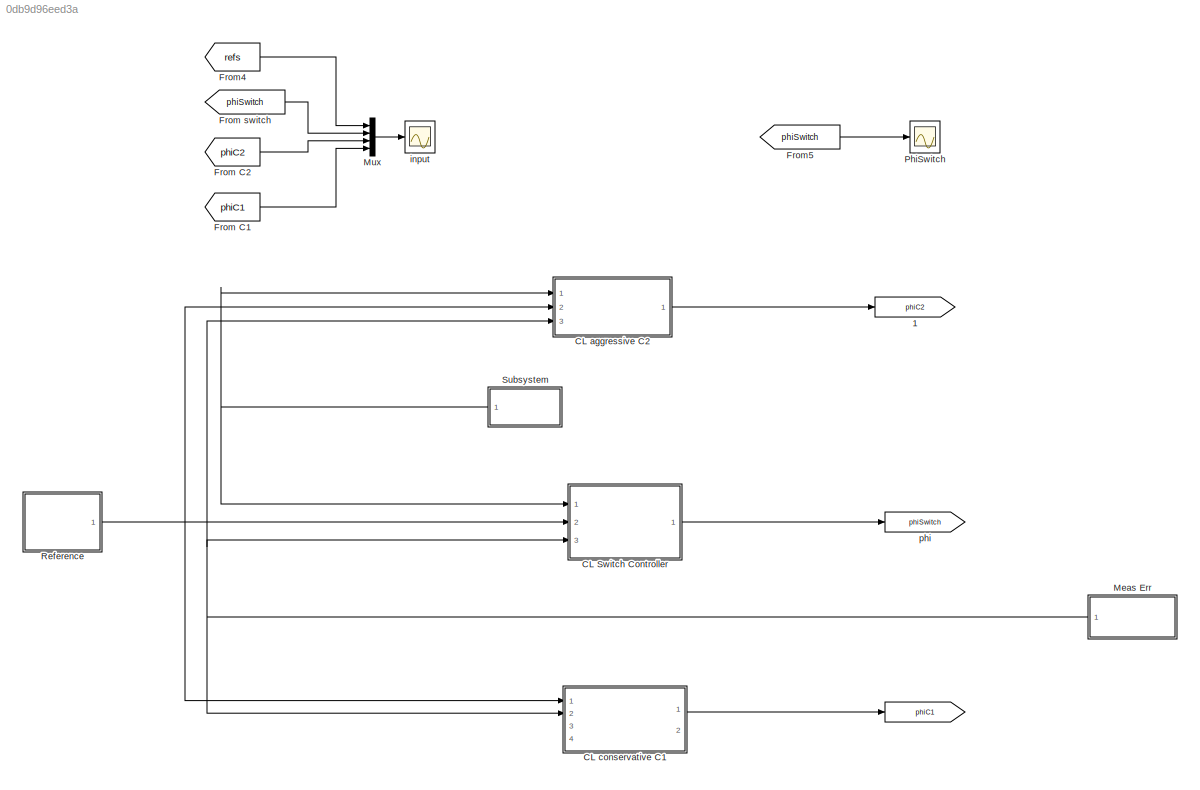
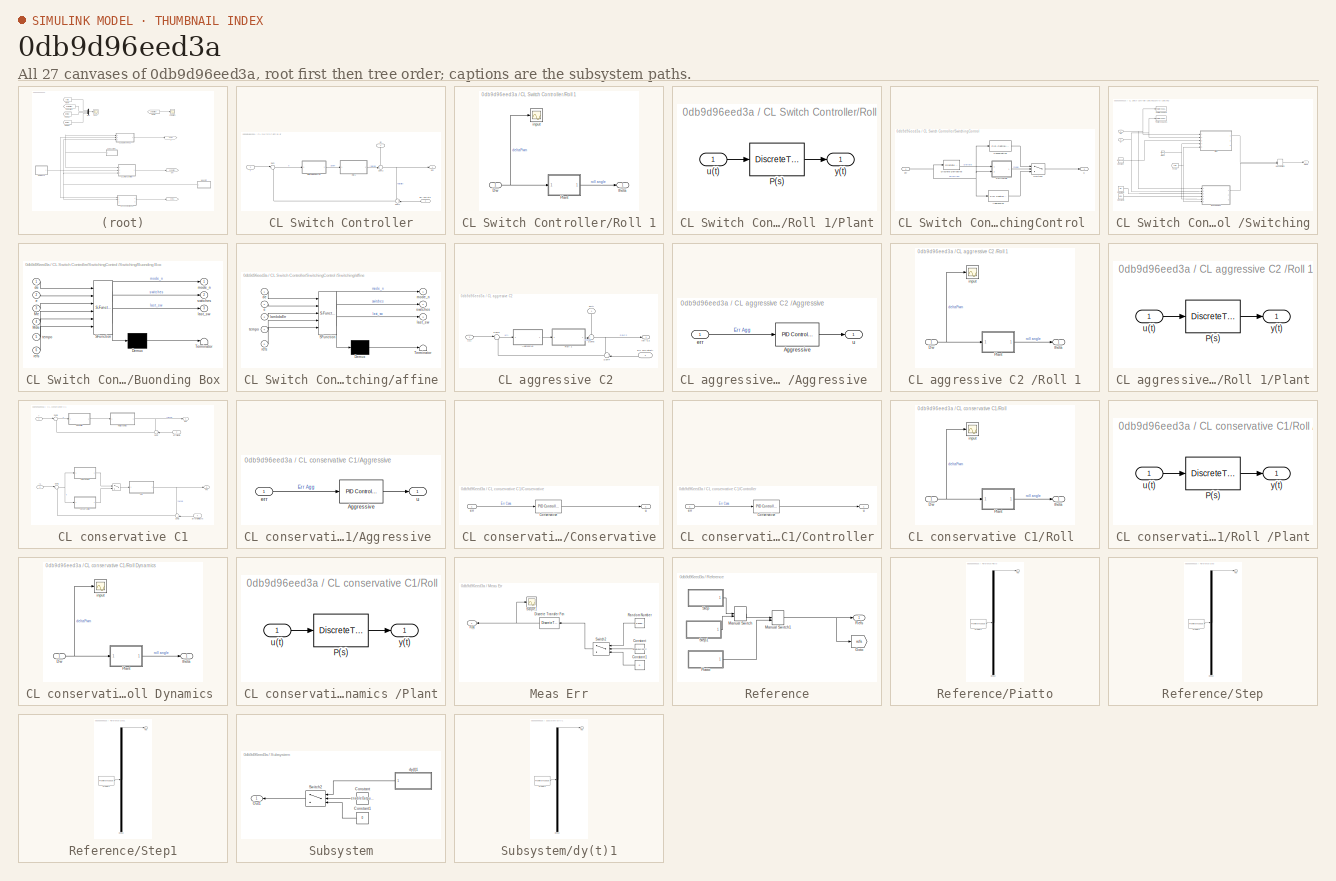
[diagram: thumbnail index - all 27 canvases of the model, root first then tree order]
MODEL slx_0db9d96eed3a
KIND model
CONFIG AbsTol = auto
CONFIG EnableMultiTasking = on
CONFIG FixedStep = 0.021
CONFIG MaxStep = auto
CONFIG MinStep = auto
CONFIG RelTol = 1e-3
CONFIG SampleTimeConstraint = Unconstrained
CONFIG Solver = ode3
CONFIG SolverName = ode3
CONFIG StartTime = 0.0
CONFIG StopTime = 10
BLOCK [Goto]  
  GotoTag = phiC1
  TagVisibility = global
BLOCK [Goto]  1
  GotoTag = phiC2
  TagVisibility = global
BLOCK [SubSystem] CL Switch Controller
  Ports = [3, 1]
  RequestExecContextInheritance = off
  Variant = off
BLOCK [Inport] CL Switch Controller/Err Mis eta
  IconDisplay = Port number
  Port = 3
BLOCK [SubSystem] CL Switch Controller/Roll 1
  Ports = [1, 1]
  RequestExecContextInheritance = off
  Variant = off
BLOCK [Inport] CL Switch Controller/Roll 1/Dw 
  IconDisplay = Port number
BLOCK [SubSystem] CL Switch Controller/Roll 1/Plant
  Ports = [1, 1]
  RequestExecContextInheritance = off
  Variant = off
BLOCK [DiscreteTransferFcn] CL Switch Controller/Roll 1/Plant/P(s)
  Denominator = roll_lin_den_84
  InputPortMap = u0
  Numerator = roll_lin_num_84
  Ports = [1, 1]
  SampleTime = Ts
BLOCK [Inport] CL Switch Controller/Roll 1/Plant/u(t)
  IconDisplay = Port number
BLOCK [Outport] CL Switch Controller/Roll 1/Plant/y(t)
  IconDisplay = Port number
BLOCK [Scope] CL Switch Controller/Roll 1/input
  NumInputPorts = 1
  Ports = [1]
  ScopeSpecificationString = Simulink.scopes.TimeScopeBlockCfg('CurrentConfiguration', extmgr.ConfigurationSet(extmgr.Configuration('Core','General UI',true),extmgr.Configuration('Core','Source UI',true),extmgr.Configuration('Sources','WiredSimulink',true,'DataLoggingVariableName','ScopeData2','DataLoggingSaveFormat','StructureWithTime','DataLoggingLimitDataPoints',true,'DataLoggingDecimation','1','DataLoggingDecimateData',tr...<+1779ch>
BLOCK [Outport] CL Switch Controller/Roll 1/theta 
  IconDisplay = Port number
BLOCK [Sum] CL Switch Controller/Sum
  IconShape = round
  InputSameDT = off
  Inputs = |+-
  OutDataTypeStr = Inherit: Inherit via internal rule
  Ports = [2, 1]
  SaturateOnIntegerOverflow = off
BLOCK [Sum] CL Switch Controller/Sum1
  IconShape = round
  InputSameDT = off
  Inputs = ++|
  OutDataTypeStr = Inherit: Inherit via internal rule
  Ports = [2, 1]
  SaturateOnIntegerOverflow = off
BLOCK [Sum] CL Switch Controller/Sum2
  IconShape = round
  InputSameDT = off
  Inputs = ++|
  OutDataTypeStr = Inherit: Inherit via internal rule
  Ports = [2, 1]
  SaturateOnIntegerOverflow = off
BLOCK [SubSystem] CL Switch Controller/SwitchingControl 
  Ports = [1, 1]
  RequestExecContextInheritance = off
  Variant = off
BLOCK [Reference] CL Switch Controller/SwitchingControl /Aggressive  REF=simulink/Continuous/PID Controller
  Ports = [1, 1]
  SourceBlock = simulink/Continuous/PID Controller
  SourceProductBaseCode = SL
  SourceProductName = Simulink
  SourceType = PID 1dof
BLOCK [Reference] CL Switch Controller/SwitchingControl /Conservative  REF=simulink/Continuous/PID Controller
  Ports = [1, 1]
  SourceBlock = simulink/Continuous/PID Controller
  SourceProductBaseCode = SL
  SourceProductName = Simulink
  SourceType = PID 1dof
BLOCK [Reference] CL Switch Controller/SwitchingControl /Discrete Derivative  REF=simulink/Discrete/Discrete Derivative
  Ports = [1, 1]
  SourceBlock = simulink/Discrete/Discrete Derivative
  SourceProductBaseCode = SL
  SourceProductName = Simulink
  SourceType = Discrete Derivative
BLOCK [Switch] CL Switch Controller/SwitchingControl /Switch1
  Criteria = u2 > Threshold
  InputSameDT = off
  SaturateOnIntegerOverflow = off
BLOCK [SubSystem] CL Switch Controller/SwitchingControl /Switching
  Ports = [2, 1]
  RequestExecContextInheritance = off
  Variant = off
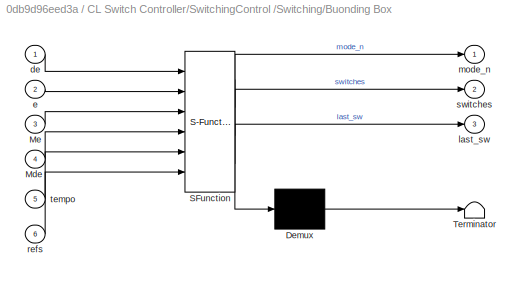
BLOCK [SubSystem] CL Switch Controller/SwitchingControl /Switching/Buonding Box
  ErrorFcn = Stateflow.Translate.translate
  PermitHierarchicalResolution = ExplicitOnly
  Ports = [6, 3]
  RequestExecContextInheritance = off
  SFBlockType = MATLAB Function
  TreatAsAtomicUnit = on
  Variant = off
BLOCK [Demux] CL Switch Controller/SwitchingControl /Switching/Buonding Box/ Demux 
  Outputs = 1
  Ports = [1, 1]
BLOCK [S-Function] CL Switch Controller/SwitchingControl /Switching/Buonding Box/ SFunction 
  EnableBusSupport = on
  FunctionName = sf_sfun
  PortCounts = [6 4]
  Ports = [6, 4]
  SFcnIsStateOwnerBlock = off
  SFunctionDeploymentMode = off
  Tag = Stateflow S-Function rollDynamicsLinear 4
BLOCK [Terminator] CL Switch Controller/SwitchingControl /Switching/Buonding Box/ Terminator 
BLOCK [Inport] CL Switch Controller/SwitchingControl /Switching/Buonding Box/Mde
  IconDisplay = Port number
  Port = 4
BLOCK [Inport] CL Switch Controller/SwitchingControl /Switching/Buonding Box/Me
  IconDisplay = Port number
  Port = 3
BLOCK [Inport] CL Switch Controller/SwitchingControl /Switching/Buonding Box/de
  IconDisplay = Port number
BLOCK [Inport] CL Switch Controller/SwitchingControl /Switching/Buonding Box/e
  IconDisplay = Port number
  Port = 2
BLOCK [Outport] CL Switch Controller/SwitchingControl /Switching/Buonding Box/last_sw
  IconDisplay = Port number
  Port = 3
BLOCK [Outport] CL Switch Controller/SwitchingControl /Switching/Buonding Box/mode_n
  IconDisplay = Port number
BLOCK [Inport] CL Switch Controller/SwitchingControl /Switching/Buonding Box/refs
  IconDisplay = Port number
  Port = 6
BLOCK [Outport] CL Switch Controller/SwitchingControl /Switching/Buonding Box/switches
  IconDisplay = Port number
  Port = 2
BLOCK [Inport] CL Switch Controller/SwitchingControl /Switching/Buonding Box/tempo
  IconDisplay = Port number
  Port = 5
BLOCK [Clock] CL Switch Controller/SwitchingControl /Switching/Clock
BLOCK [Constant] CL Switch Controller/SwitchingControl /Switching/Constant
  Value = lambdaErr
BLOCK [Constant] CL Switch Controller/SwitchingControl /Switching/Constant2
  Value = Me
BLOCK [Constant] CL Switch Controller/SwitchingControl /Switching/Constant3
  Value = Mde
BLOCK [From] CL Switch Controller/SwitchingControl /Switching/From
  GotoTag = refs
  TagVisibility = global
BLOCK [ManualSwitch] CL Switch Controller/SwitchingControl /Switching/Manual Switch
BLOCK [Outport] CL Switch Controller/SwitchingControl /Switching/Mode
  IconDisplay = Port number
BLOCK [ToWorkspace] CL Switch Controller/SwitchingControl /Switching/To Workspace
  FixptAsFi = on
  MaxDataPoints = inf
  Ports = [1]
  SampleTime = -1
  Save2DSignal = 3-D array (concatenate along third dimension)
  SaveFormat = Timeseries
  VariableName = derErr
BLOCK [ToWorkspace] CL Switch Controller/SwitchingControl /Switching/To Workspace1
  FixptAsFi = on
  MaxDataPoints = inf
  Ports = [1]
  SampleTime = -1
  Save2DSignal = 3-D array (concatenate along third dimension)
  SaveFormat = Timeseries
  VariableName = Err
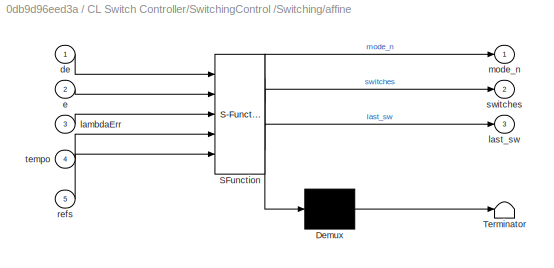
BLOCK [SubSystem] CL Switch Controller/SwitchingControl /Switching/affine
  ErrorFcn = Stateflow.Translate.translate
  PermitHierarchicalResolution = ExplicitOnly
  Ports = [5, 3]
  RequestExecContextInheritance = off
  SFBlockType = MATLAB Function
  TreatAsAtomicUnit = on
  Variant = off
BLOCK [Demux] CL Switch Controller/SwitchingControl /Switching/affine/ Demux 
  Outputs = 1
  Ports = [1, 1]
BLOCK [S-Function] CL Switch Controller/SwitchingControl /Switching/affine/ SFunction 
  EnableBusSupport = on
  FunctionName = sf_sfun
  PortCounts = [5 4]
  Ports = [5, 4]
  SFcnIsStateOwnerBlock = off
  SFunctionDeploymentMode = off
  Tag = Stateflow S-Function rollDynamicsLinear 3
BLOCK [Terminator] CL Switch Controller/SwitchingControl /Switching/affine/ Terminator 
BLOCK [Inport] CL Switch Controller/SwitchingControl /Switching/affine/de
  IconDisplay = Port number
BLOCK [Inport] CL Switch Controller/SwitchingControl /Switching/affine/e
  IconDisplay = Port number
  Port = 2
BLOCK [Inport] CL Switch Controller/SwitchingControl /Switching/affine/lambdaErr
  IconDisplay = Port number
  Port = 3
BLOCK [Outport] CL Switch Controller/SwitchingControl /Switching/affine/last_sw
  IconDisplay = Port number
  Port = 3
BLOCK [Outport] CL Switch Controller/SwitchingControl /Switching/affine/mode_n
  IconDisplay = Port number
BLOCK [Inport] CL Switch Controller/SwitchingControl /Switching/affine/refs
  IconDisplay = Port number
  Port = 5
BLOCK [Outport] CL Switch Controller/SwitchingControl /Switching/affine/switches
  IconDisplay = Port number
  Port = 2
BLOCK [Inport] CL Switch Controller/SwitchingControl /Switching/affine/tempo
  IconDisplay = Port number
  Port = 4
BLOCK [Inport] CL Switch Controller/SwitchingControl /Switching/de
  IconDisplay = Port number
BLOCK [Inport] CL Switch Controller/SwitchingControl /Switching/e
  IconDisplay = Port number
  Port = 2
BLOCK [Inport] CL Switch Controller/SwitchingControl /err 
  IconDisplay = Port number
BLOCK [Outport] CL Switch Controller/SwitchingControl /u 
  IconDisplay = Port number
BLOCK [Inport] CL Switch Controller/dy
  IconDisplay = Port number
BLOCK [Outport] CL Switch Controller/phi
  IconDisplay = Port number
BLOCK [Inport] CL Switch Controller/r
  IconDisplay = Port number
  Port = 2
BLOCK [SubSystem] CL aggressive C2 
  Ports = [3, 1]
  RequestExecContextInheritance = off
  Variant = off
BLOCK [SubSystem] CL aggressive C2 /Aggressive 
  Ports = [1, 1]
  RequestExecContextInheritance = off
  Variant = off
BLOCK [Reference] CL aggressive C2 /Aggressive /Aggressive  REF=simulink/Continuous/PID Controller
  Ports = [1, 1]
  SourceBlock = simulink/Continuous/PID Controller
  SourceProductBaseCode = SL
  SourceProductName = Simulink
  SourceType = PID 1dof
BLOCK [Inport] CL aggressive C2 /Aggressive /err 
  IconDisplay = Port number
BLOCK [Outport] CL aggressive C2 /Aggressive /u 
  IconDisplay = Port number
BLOCK [Inport] CL aggressive C2 /Err Mis eta(t)
  IconDisplay = Port number
  Port = 3
BLOCK [SubSystem] CL aggressive C2 /Roll 1
  Ports = [1, 1]
  RequestExecContextInheritance = off
  Variant = off
BLOCK [Inport] CL aggressive C2 /Roll 1/Dw 
  IconDisplay = Port number
BLOCK [SubSystem] CL aggressive C2 /Roll 1/Plant
  Ports = [1, 1]
  RequestExecContextInheritance = off
  Variant = off
BLOCK [DiscreteTransferFcn] CL aggressive C2 /Roll 1/Plant/P(s)
  Denominator = roll_lin_den_84
  InputPortMap = u0
  Numerator = roll_lin_num_84
  Ports = [1, 1]
  SampleTime = Ts
BLOCK [Inport] CL aggressive C2 /Roll 1/Plant/u(t)
  IconDisplay = Port number
BLOCK [Outport] CL aggressive C2 /Roll 1/Plant/y(t)
  IconDisplay = Port number
BLOCK [Scope] CL aggressive C2 /Roll 1/input
  NumInputPorts = 1
  Ports = [1]
  ScopeSpecificationString = Simulink.scopes.TimeScopeBlockCfg('CurrentConfiguration', extmgr.ConfigurationSet(extmgr.Configuration('Core','General UI',true),extmgr.Configuration('Core','Source UI',true),extmgr.Configuration('Sources','WiredSimulink',true,'DataLoggingVariableName','ScopeData2','DataLoggingSaveFormat','StructureWithTime','DataLoggingLimitDataPoints',true,'DataLoggingDecimation','1','DataLoggingDecimateData',tr...<+1790ch>  <repeated x3 — deduplicated; at blocks: input>
BLOCK [Outport] CL aggressive C2 /Roll 1/theta 
  IconDisplay = Port number
BLOCK [Sum] CL aggressive C2 /Sum3
  IconShape = round
  InputSameDT = off
  Inputs = |+-
  OutDataTypeStr = Inherit: Inherit via internal rule
  Ports = [2, 1]
  SaturateOnIntegerOverflow = off
BLOCK [Sum] CL aggressive C2 /Sum4
  IconShape = round
  InputSameDT = off
  Inputs = ++|
  OutDataTypeStr = Inherit: Inherit via internal rule
  Ports = [2, 1]
  SaturateOnIntegerOverflow = off
BLOCK [Sum] CL aggressive C2 /Sum5
  IconShape = round
  InputSameDT = off
  Inputs = ++|
  OutDataTypeStr = Inherit: Inherit via internal rule
  Ports = [2, 1]
  SaturateOnIntegerOverflow = off
BLOCK [Inport] CL aggressive C2 /dy(t)
  IconDisplay = Port number
BLOCK [Inport] CL aggressive C2 /r(t)
  IconDisplay = Port number
  Port = 2
BLOCK [Outport] CL aggressive C2 /roll C2
  IconDisplay = Port number
BLOCK [SubSystem] CL conservative C1
  Ports = [4, 2]
  RequestExecContextInheritance = off
  Variant = off
BLOCK [MultiPortSwitch] CL conservative C1/ 
  DataPortOrder = Zero-based contiguous
  InputSameDT = off
  Inputs = 1
  Ports = [2, 1]
  SaturateOnIntegerOverflow = off
  zeroidx = on
BLOCK [SubSystem] CL conservative C1/Aggressive 
  Ports = [1, 1]
  RequestExecContextInheritance = off
  Variant = off
BLOCK [Reference] CL conservative C1/Aggressive /Aggressive  REF=simulink/Continuous/PID Controller
  Ports = [1, 1]
  SourceBlock = simulink/Continuous/PID Controller
  SourceProductBaseCode = SL
  SourceProductName = Simulink
  SourceType = PID 1dof
BLOCK [Inport] CL conservative C1/Aggressive /err 
  IconDisplay = Port number
BLOCK [Outport] CL conservative C1/Aggressive /u 
  IconDisplay = Port number
BLOCK [SubSystem] CL conservative C1/Conservative
  Ports = [1, 1]
  RequestExecContextInheritance = off
  Variant = off
BLOCK [Reference] CL conservative C1/Conservative/Conservative  REF=simulink/Continuous/PID Controller
  Ports = [1, 1]
  SourceBlock = simulink/Continuous/PID Controller
  SourceProductBaseCode = SL
  SourceProductName = Simulink
  SourceType = PID 1dof
BLOCK [Inport] CL conservative C1/Conservative/err 
  IconDisplay = Port number
BLOCK [Outport] CL conservative C1/Conservative/u 
  IconDisplay = Port number
BLOCK [SubSystem] CL conservative C1/Controller
  Ports = [1, 1]
  RequestExecContextInheritance = off
  Variant = off
BLOCK [Reference] CL conservative C1/Controller/Conservative  REF=simulink/Continuous/PID Controller
  Ports = [1, 1]
  SourceBlock = simulink/Continuous/PID Controller
  SourceProductBaseCode = SL
  SourceProductName = Simulink
  SourceType = PID 1dof
BLOCK [Inport] CL conservative C1/Controller/err 
  IconDisplay = Port number
BLOCK [Outport] CL conservative C1/Controller/u 
  IconDisplay = Port number
BLOCK [Inport] CL conservative C1/Err Mis eta
  IconDisplay = Port number
  Port = 2
BLOCK [Inport] CL conservative C1/Errori di misura
  IconDisplay = Port number
  Port = 4
BLOCK [Outport] CL conservative C1/Phi
  IconDisplay = Port number
  Port = 2
BLOCK [SubSystem] CL conservative C1/Roll 
  Ports = [1, 1]
  RequestExecContextInheritance = off
  Variant = off
BLOCK [Inport] CL conservative C1/Roll /Dw 
  IconDisplay = Port number
BLOCK [SubSystem] CL conservative C1/Roll /Plant
  Ports = [1, 1]
  RequestExecContextInheritance = off
  Variant = off
BLOCK [DiscreteTransferFcn] CL conservative C1/Roll /Plant/P(s)
  Denominator = roll_lin_den_84
  InputPortMap = u0
  Numerator = roll_lin_num_84
  Ports = [1, 1]
  SampleTime = Ts
BLOCK [Inport] CL conservative C1/Roll /Plant/u(t)
  IconDisplay = Port number
BLOCK [Outport] CL conservative C1/Roll /Plant/y(t)
  IconDisplay = Port number
BLOCK [Scope] CL conservative C1/Roll /input
  NumInputPorts = 1
  Ports = [1]
BLOCK [Outport] CL conservative C1/Roll /theta 
  IconDisplay = Port number
BLOCK [SubSystem] CL conservative C1/Roll Dynamics 
  Ports = [1, 1]
  RequestExecContextInheritance = off
  Variant = off
BLOCK [Inport] CL conservative C1/Roll Dynamics /Dw 
  IconDisplay = Port number
BLOCK [SubSystem] CL conservative C1/Roll Dynamics /Plant
  Ports = [1, 1]
  RequestExecContextInheritance = off
  Variant = off
BLOCK [DiscreteTransferFcn] CL conservative C1/Roll Dynamics /Plant/P(s)
  Denominator = roll_lin_den_84
  InputPortMap = u0
  Numerator = roll_lin_num_84
  Ports = [1, 1]
  SampleTime = Ts
BLOCK [Inport] CL conservative C1/Roll Dynamics /Plant/u(t)
  IconDisplay = Port number
BLOCK [Outport] CL conservative C1/Roll Dynamics /Plant/y(t)
  IconDisplay = Port number
BLOCK [Scope] CL conservative C1/Roll Dynamics /input
  NumInputPorts = 1
  Ports = [1]
BLOCK [Outport] CL conservative C1/Roll Dynamics /theta 
  IconDisplay = Port number
BLOCK [Sum] CL conservative C1/Sum1
  IconShape = round
  InputSameDT = off
  Inputs = |+-
  OutDataTypeStr = Inherit: Inherit via internal rule
  Ports = [2, 1]
  SaturateOnIntegerOverflow = off
BLOCK [Sum] CL conservative C1/Sum2
  IconShape = round
  InputSameDT = off
  Inputs = ++|
  OutDataTypeStr = Inherit: Inherit via internal rule
  Ports = [2, 1]
  SaturateOnIntegerOverflow = off
BLOCK [Sum] CL conservative C1/Sum6
  IconShape = round
  InputSameDT = off
  Inputs = |+-
  OutDataTypeStr = Inherit: Inherit via internal rule
  Ports = [2, 1]
  SaturateOnIntegerOverflow = off
BLOCK [Sum] CL conservative C1/Sum7
  IconShape = round
  InputSameDT = off
  Inputs = ++|
  OutDataTypeStr = Inherit: Inherit via internal rule
  Ports = [2, 1]
  SaturateOnIntegerOverflow = off
BLOCK [Outport] CL conservative C1/phi
  IconDisplay = Port number
BLOCK [Inport] CL conservative C1/r
  IconDisplay = Port number
BLOCK [Inport] CL conservative C1/r1
  IconDisplay = Port number
  Port = 3
BLOCK [From] From C1
  GotoTag = phiC1
  TagVisibility = global
BLOCK [From] From C2
  GotoTag = phiC2
  TagVisibility = global
BLOCK [From] From switch
  GotoTag = phiSwitch
  TagVisibility = global
BLOCK [From] From4
  GotoTag = refs
  TagVisibility = global
BLOCK [From] From5
  GotoTag = phiSwitch
  TagVisibility = global
BLOCK [SubSystem] Meas Err
  Ports = [0, 1]
  RequestExecContextInheritance = off
  Variant = off
BLOCK [Constant] Meas Err/Constant
  Value = enableMisErr
BLOCK [Constant] Meas Err/Constant1
  Value = 0
BLOCK [DiscreteTransferFcn] Meas Err/Discrete Transfer Fcn
  Denominator = [1 -0.98]
  InputPortMap = u0
  Numerator = [0.02]
  Ports = [1, 1]
BLOCK [RandomNumber] Meas Err/Random Number
  SampleTime = Ts
  Variance = 1.3
BLOCK [Scope] Meas Err/Scope1
  NumInputPorts = 1
  Ports = [1]
  ScopeSpecificationString = Simulink.scopes.TimeScopeBlockCfg('CurrentConfiguration', extmgr.ConfigurationSet(extmgr.Configuration('Core','General UI',true),extmgr.Configuration('Core','Source UI',true),extmgr.Configuration('Sources','WiredSimulink',true,'DataLoggingSaveFormat','StructureWithTime','DataLoggingLimitDataPoints',true,'DataLoggingDecimation','1','DataLoggingDecimateData',true,'DataLoggingVariableName','ScopeData...<+1785ch>
BLOCK [Switch] Meas Err/Switch2
  Criteria = u2 > Threshold
  InputSameDT = off
  SampleTime = Ts
  SaturateOnIntegerOverflow = off
BLOCK [Outport] Meas Err/n(k)
  IconDisplay = Port number
BLOCK [Mux] Mux
  DisplayOption = bar
  Ports = [4, 1]
BLOCK [Scope] PhiSwitch
  DefaultConfigurationName = spbscopes.TimeScopeBlockCfg
  NumInputPorts = 1
  Ports = [1]
  ScopeSpecificationString = spbscopes.TimeScopeBlockCfg('CurrentConfiguration', extmgr.ConfigurationSet(extmgr.Configuration('Core','General UI',true),extmgr.Configuration('Core','Source UI',true),extmgr.Configuration('Sources','WiredSimulink',true,'DataLoggingVariableName','ScopeData2'),extmgr.Configuration('Visuals','Time Domain',true,'DisplayPropertyDefaults',struct('MinYLimReal','-4.68636','MaxYLimReal','42.17722','YLabe...<+1445ch>
  UserDataPersistent = on
BLOCK [SubSystem] Reference
  Ports = [0, 1]
  RequestExecContextInheritance = off
  Variant = off
BLOCK [Goto] Reference/Goto
  GotoTag = refs
  TagVisibility = global
BLOCK [ManualSwitch] Reference/Manual Switch
BLOCK [ManualSwitch] Reference/Manual Switch1
BLOCK [SubSystem] Reference/Piatto
  ClipboardFcn = sigbuilder_block('clipboard');
  CloseFcn = sigbuilder_block('close');
  ContinueFcn = sigbuilder_block('continue');
  CopyFcn = sigbuilder_block('copy');
  DeleteFcn = sigbuilder_block('delete');
  LoadFcn = sigbuilder_block('load');
  MaskHideContents = on
  ModelCloseFcn = sigbuilder_block('modelClose');
  NameChangeFcn = sigbuilder_block('namechange');
  OpenFcn = sigbuilder_block('open',[240 0.75 594.75 533.25 ]);
  PauseFcn = sigbuilder_block('pause');
  Ports = [0, 1]
  PreSaveFcn = sigbuilder_block('preSave');
  RequestExecContextInheritance = off
  StartFcn = sigbuilder_block('start');
  StopFcn = sigbuilder_block('stop');
  Tag = STV Subsys
  Variant = off
BLOCK [Demux] Reference/Piatto/Demux
  Outputs = 1
  Ports = [1, 1]
  Tag = STV Demux
BLOCK [FromWorkspace] Reference/Piatto/FromWs
  SampleTime = 0
  Tag = STV FromWs
  VariableName = tuvar
  ZeroCross = on
BLOCK [Outport] Reference/Piatto/Roll
  IconDisplay = Port number
  Tag = STV Outport
BLOCK [Outport] Reference/Refs
  IconDisplay = Port number
BLOCK [SubSystem] Reference/Step
  ClipboardFcn = sigbuilder_block('clipboard');
  CloseFcn = sigbuilder_block('close');
  ContinueFcn = sigbuilder_block('continue');
  CopyFcn = sigbuilder_block('copy');
  DeleteFcn = sigbuilder_block('delete');
  LoadFcn = sigbuilder_block('load');
  MaskHideContents = on
  ModelCloseFcn = sigbuilder_block('modelClose');
  NameChangeFcn = sigbuilder_block('namechange');
  OpenFcn = sigbuilder_block('open',[222.75 0 632.25 495.75 ]);
  PauseFcn = sigbuilder_block('pause');
  Ports = [0, 1]
  PreSaveFcn = sigbuilder_block('preSave');
  RequestExecContextInheritance = off
  StartFcn = sigbuilder_block('start');
  StopFcn = sigbuilder_block('stop');
  Tag = STV Subsys
  Variant = off
BLOCK [Demux] Reference/Step/Demux
  Outputs = 1
  Ports = [1, 1]
  Tag = STV Demux
BLOCK [FromWorkspace] Reference/Step/FromWs
  SampleTime = Ts
  Tag = STV FromWs
  VariableName = tuvar
  ZeroCross = on
BLOCK [Outport] Reference/Step/Roll
  IconDisplay = Port number
  Tag = STV Outport
BLOCK [SubSystem] Reference/Step1
  ClipboardFcn = sigbuilder_block('clipboard');
  CloseFcn = sigbuilder_block('close');
  ContinueFcn = sigbuilder_block('continue');
  CopyFcn = sigbuilder_block('copy');
  DeleteFcn = sigbuilder_block('delete');
  LoadFcn = sigbuilder_block('load');
  MaskHideContents = on
  ModelCloseFcn = sigbuilder_block('modelClose');
  NameChangeFcn = sigbuilder_block('namechange');
  OpenFcn = sigbuilder_block('open',[222.75 0 632.25 495.75 ]);
  PauseFcn = sigbuilder_block('pause');
  Ports = [0, 1]
  PreSaveFcn = sigbuilder_block('preSave');
  RequestExecContextInheritance = off
  StartFcn = sigbuilder_block('start');
  StopFcn = sigbuilder_block('stop');
  Tag = STV Subsys
  Variant = off
BLOCK [Demux] Reference/Step1/Demux
  Outputs = 1
  Ports = [1, 1]
  Tag = STV Demux
BLOCK [FromWorkspace] Reference/Step1/FromWs
  SampleTime = Ts
  Tag = STV FromWs
  VariableName = tuvar
  ZeroCross = on
BLOCK [Outport] Reference/Step1/Roll
  IconDisplay = Port number
  Tag = STV Outport
BLOCK [SubSystem] Subsystem
  Ports = [0, 1]
  RequestExecContextInheritance = off
  Variant = off
BLOCK [Constant] Subsystem/Constant
  SampleTime = Ts
  Value = enableOutputPert
BLOCK [Constant] Subsystem/Constant1
  Value = 0
BLOCK [Outport] Subsystem/Out1
  IconDisplay = Port number
BLOCK [Switch] Subsystem/Switch2
  Criteria = u2 > Threshold
  InputSameDT = off
  SampleTime = Ts
  SaturateOnIntegerOverflow = off
BLOCK [SubSystem] Subsystem/dy(t)1
  ClipboardFcn = sigbuilder_block('clipboard');
  CloseFcn = sigbuilder_block('close');
  ContinueFcn = sigbuilder_block('continue');
  CopyFcn = sigbuilder_block('copy');
  DeleteFcn = sigbuilder_block('delete');
  LoadFcn = sigbuilder_block('load');
  MaskHideContents = on
  ModelCloseFcn = sigbuilder_block('modelClose');
  NameChangeFcn = sigbuilder_block('namechange');
  OpenFcn = sigbuilder_block('open',[234.75 0 602.25 495.75 ]);
  PauseFcn = sigbuilder_block('pause');
  Ports = [0, 1]
  PreSaveFcn = sigbuilder_block('preSave');
  RequestExecContextInheritance = off
  StartFcn = sigbuilder_block('start');
  StopFcn = sigbuilder_block('stop');
  Tag = STV Subsys
  Variant = off
BLOCK [Demux] Subsystem/dy(t)1/Demux
  Outputs = 1
  Ports = [1, 1]
  Tag = STV Demux
BLOCK [FromWorkspace] Subsystem/dy(t)1/FromWs
  SampleTime = 0
  Tag = STV FromWs
  VariableName = tuvar
  ZeroCross = on
BLOCK [Outport] Subsystem/dy(t)1/Roll
  IconDisplay = Port number
  Tag = STV Outport
BLOCK [Scope] input
  NumInputPorts = 1
  Ports = [1]
  ScopeSpecificationString = Simulink.scopes.TimeScopeBlockCfg('CurrentConfiguration', extmgr.ConfigurationSet(extmgr.Configuration('Core','General UI',true),extmgr.Configuration('Core','Source UI',true),extmgr.Configuration('Sources','WiredSimulink',true,'DataLoggingVariableName','ScopeData1','DataLoggingSaveFormat','StructureWithTime','DataLoggingLimitDataPoints',true,'DataLoggingDecimation','1','DataLoggingDecimateData',tr...<+1820ch>
BLOCK [Goto] phi
  GotoTag = phiSwitch
  TagVisibility = global
LINE CL Switch Controller/Err Mis eta:1 -> CL Switch Controller/Sum1:2
NET CL Switch Controller/Roll 1/Dw :1 -> CL Switch Controller/Roll 1/Plant:1, CL Switch Controller/Roll 1/input:1
LINE CL Switch Controller/Roll 1/Plant/P(s):1 -> CL Switch Controller/Roll 1/Plant/y(t):1
LINE CL Switch Controller/Roll 1/Plant/u(t):1 -> CL Switch Controller/Roll 1/Plant/P(s):1
LINE CL Switch Controller/Roll 1/Plant:1 -> CL Switch Controller/Roll 1/theta :1
LINE CL Switch Controller/Roll 1:1 -> CL Switch Controller/Sum2:2
LINE CL Switch Controller/Sum1:1 -> CL Switch Controller/Sum:2
NET CL Switch Controller/Sum2:1 -> CL Switch Controller/Sum1:1, CL Switch Controller/phi:1
LINE CL Switch Controller/Sum:1 -> CL Switch Controller/SwitchingControl :1
LINE CL Switch Controller/SwitchingControl /Aggressive:1 -> CL Switch Controller/SwitchingControl /Switch1:3
LINE CL Switch Controller/SwitchingControl /Conservative:1 -> CL Switch Controller/SwitchingControl /Switch1:1
LINE CL Switch Controller/SwitchingControl /Discrete Derivative:1 -> CL Switch Controller/SwitchingControl /Switching:1
LINE CL Switch Controller/SwitchingControl /Switch1:1 -> CL Switch Controller/SwitchingControl /u :1
LINE CL Switch Controller/SwitchingControl /Switching/Buonding Box:1 -> CL Switch Controller/SwitchingControl /Switching/Manual Switch:2
NET CL Switch Controller/SwitchingControl /Switching/Clock:1 -> CL Switch Controller/SwitchingControl /Switching/Buonding Box:5, CL Switch Controller/SwitchingControl /Switching/affine:4
LINE CL Switch Controller/SwitchingControl /Switching/Constant2:1 -> CL Switch Controller/SwitchingControl /Switching/Buonding Box:3
LINE CL Switch Controller/SwitchingControl /Switching/Constant3:1 -> CL Switch Controller/SwitchingControl /Switching/Buonding Box:4
LINE CL Switch Controller/SwitchingControl /Switching/Constant:1 -> CL Switch Controller/SwitchingControl /Switching/affine:3
NET CL Switch Controller/SwitchingControl /Switching/From:1 -> CL Switch Controller/SwitchingControl /Switching/Buonding Box:6, CL Switch Controller/SwitchingControl /Switching/affine:5
LINE CL Switch Controller/SwitchingControl /Switching/Manual Switch:1 -> CL Switch Controller/SwitchingControl /Switching/Mode:1
LINE CL Switch Controller/SwitchingControl /Switching/affine:1 -> CL Switch Controller/SwitchingControl /Switching/Manual Switch:1
NET CL Switch Controller/SwitchingControl /Switching/de:1 -> CL Switch Controller/SwitchingControl /Switching/Buonding Box:1, CL Switch Controller/SwitchingControl /Switching/To Workspace:1, CL Switch Controller/SwitchingControl /Switching/affine:1
NET CL Switch Controller/SwitchingControl /Switching/e:1 -> CL Switch Controller/SwitchingControl /Switching/Buonding Box:2, CL Switch Controller/SwitchingControl /Switching/To Workspace1:1, CL Switch Controller/SwitchingControl /Switching/affine:2
LINE CL Switch Controller/SwitchingControl /Switching:1 -> CL Switch Controller/SwitchingControl /Switch1:2
NET CL Switch Controller/SwitchingControl /err :1 -> CL Switch Controller/SwitchingControl /Aggressive:1, CL Switch Controller/SwitchingControl /Conservative:1, CL Switch Controller/SwitchingControl /Discrete Derivative:1, CL Switch Controller/SwitchingControl /Switching:2
LINE CL Switch Controller/SwitchingControl :1 -> CL Switch Controller/Roll 1:1
LINE CL Switch Controller/dy:1 -> CL Switch Controller/Sum2:1
LINE CL Switch Controller/r:1 -> CL Switch Controller/Sum:1
LINE CL Switch Controller:1 -> phi:1
LINE CL aggressive C2 /Aggressive /Aggressive:1 -> CL aggressive C2 /Aggressive /u :1
LINE CL aggressive C2 /Aggressive /err :1 -> CL aggressive C2 /Aggressive /Aggressive:1
LINE CL aggressive C2 /Aggressive :1 -> CL aggressive C2 /Roll 1:1
LINE CL aggressive C2 /Err Mis eta(t):1 -> CL aggressive C2 /Sum4:2
NET CL aggressive C2 /Roll 1/Dw :1 -> CL aggressive C2 /Roll 1/Plant:1, CL aggressive C2 /Roll 1/input:1
LINE CL aggressive C2 /Roll 1/Plant/P(s):1 -> CL aggressive C2 /Roll 1/Plant/y(t):1
LINE CL aggressive C2 /Roll 1/Plant/u(t):1 -> CL aggressive C2 /Roll 1/Plant/P(s):1
LINE CL aggressive C2 /Roll 1/Plant:1 -> CL aggressive C2 /Roll 1/theta :1
LINE CL aggressive C2 /Roll 1:1 -> CL aggressive C2 /Sum5:2
LINE CL aggressive C2 /Sum3:1 -> CL aggressive C2 /Aggressive :1
LINE CL aggressive C2 /Sum4:1 -> CL aggressive C2 /Sum3:2
NET CL aggressive C2 /Sum5:1 -> CL aggressive C2 /Sum4:1, CL aggressive C2 /roll C2:1
LINE CL aggressive C2 /dy(t):1 -> CL aggressive C2 /Sum5:1
LINE CL aggressive C2 /r(t):1 -> CL aggressive C2 /Sum3:1
LINE CL aggressive C2 :1 ->  1:1
LINE CL conservative C1/ :1 -> CL conservative C1/Roll :1
LINE CL conservative C1/Aggressive /Aggressive:1 -> CL conservative C1/Aggressive /u :1
LINE CL conservative C1/Aggressive /err :1 -> CL conservative C1/Aggressive /Aggressive:1
LINE CL conservative C1/Aggressive :1 -> CL conservative C1/ :1
LINE CL conservative C1/Conservative/Conservative:1 -> CL conservative C1/Conservative/u :1
LINE CL conservative C1/Conservative/err :1 -> CL conservative C1/Conservative/Conservative:1
LINE CL conservative C1/Conservative:1 -> CL conservative C1/ :2
LINE CL conservative C1/Controller/Conservative:1 -> CL conservative C1/Controller/u :1
LINE CL conservative C1/Controller/err :1 -> CL conservative C1/Controller/Conservative:1
LINE CL conservative C1/Controller:1 -> CL conservative C1/Roll Dynamics :1
LINE CL conservative C1/Err Mis eta:1 -> CL conservative C1/Sum7:2
LINE CL conservative C1/Errori di misura:1 -> CL conservative C1/Sum2:2
NET CL conservative C1/Roll /Dw :1 -> CL conservative C1/Roll /Plant:1, CL conservative C1/Roll /input:1
LINE CL conservative C1/Roll /Plant/P(s):1 -> CL conservative C1/Roll /Plant/y(t):1
LINE CL conservative C1/Roll /Plant/u(t):1 -> CL conservative C1/Roll /Plant/P(s):1
LINE CL conservative C1/Roll /Plant:1 -> CL conservative C1/Roll /theta :1
NET CL conservative C1/Roll :1 -> CL conservative C1/Phi:1, CL conservative C1/Sum2:1
NET CL conservative C1/Roll Dynamics /Dw :1 -> CL conservative C1/Roll Dynamics /Plant:1, CL conservative C1/Roll Dynamics /input:1
LINE CL conservative C1/Roll Dynamics /Plant/P(s):1 -> CL conservative C1/Roll Dynamics /Plant/y(t):1
LINE CL conservative C1/Roll Dynamics /Plant/u(t):1 -> CL conservative C1/Roll Dynamics /Plant/P(s):1
LINE CL conservative C1/Roll Dynamics /Plant:1 -> CL conservative C1/Roll Dynamics /theta :1
NET CL conservative C1/Roll Dynamics :1 -> CL conservative C1/Sum7:1, CL conservative C1/phi:1
NET CL conservative C1/Sum1:1 -> CL conservative C1/Aggressive :1, CL conservative C1/Conservative:1
LINE CL conservative C1/Sum2:1 -> CL conservative C1/Sum1:2
LINE CL conservative C1/Sum6:1 -> CL conservative C1/Controller:1
LINE CL conservative C1/Sum7:1 -> CL conservative C1/Sum6:2
LINE CL conservative C1/r1:1 -> CL conservative C1/Sum1:1
LINE CL conservative C1/r:1 -> CL conservative C1/Sum6:1
LINE CL conservative C1:1 ->  :1
LINE From C1:1 -> Mux:4
LINE From C2:1 -> Mux:3
LINE From switch:1 -> Mux:2
LINE From4:1 -> Mux:1
LINE From5:1 -> PhiSwitch:1
LINE Meas Err/Constant1:1 -> Meas Err/Switch2:3
LINE Meas Err/Constant:1 -> Meas Err/Switch2:2
NET Meas Err/Discrete Transfer Fcn:1 -> Meas Err/Scope1:1, Meas Err/n(k):1
LINE Meas Err/Random Number:1 -> Meas Err/Switch2:1
LINE Meas Err/Switch2:1 -> Meas Err/Discrete Transfer Fcn:1
NET Meas Err:1 -> CL Switch Controller:3, CL aggressive C2 :3, CL conservative C1:2
LINE Mux:1 -> input:1
NET Reference/Manual Switch1:1 -> Reference/Goto:1, Reference/Refs:1
LINE Reference/Manual Switch:1 -> Reference/Manual Switch1:1
LINE Reference/Piatto:1 -> Reference/Manual Switch1:2
LINE Reference/Step1:1 -> Reference/Manual Switch:2
LINE Reference/Step:1 -> Reference/Manual Switch:1
NET Reference:1 -> CL Switch Controller:2, CL aggressive C2 :2, CL conservative C1:1
LINE Subsystem/Constant1:1 -> Subsystem/Switch2:3
LINE Subsystem/Constant:1 -> Subsystem/Switch2:2
LINE Subsystem/Switch2:1 -> Subsystem/Out1:1
LINE Subsystem/dy(t)1:1 -> Subsystem/Switch2:1
NET Subsystem:1 -> CL Switch Controller:1, CL aggressive C2 :1
note: NET lines group one-source signal fan-out (src -> all destinations, sorted); 1:1 wires keep LINE
CHART CL Switch Controller/SwitchingControl
/Switching/affine states=1 transitions=1
  STATE_LABEL 'eML_blk_kernel()'
  STATE_LABEL 'SCRIPT:\nfunction [mode_n,switches,last_sw] = checkCondE(de,e,lambdaErr,tempo,refs)\n%#codegen\npersistent last_switch mode_m1 num_switch ref_m1 max_switch mode\n\n\nif isempty(mode) \n    mode = 1;\nend\n\nif isempty(mode_m1) \n    mode_m1 = mode;\nend\n\nif isempty(num_switch)\n    num_switch = 0;\nend\nif isempty(last_switch) \n    last_switch = tempo;\nend\n\nif isempty(ref_m1) \n    ref_m1 = refs;\nend\n\nif isempty(...<+2281ch>'
CHART CL Switch Controller/SwitchingControl
/Switching/Buonding Box states=1 transitions=1
  STATE_LABEL 'eML_blk_kernel()'
  STATE_LABEL 'SCRIPT:\nfunction [mode_n,switches,last_sw]= checkCondE(de,e,Me,Mde,tempo,refs)\n%#codegen\npersistent last_switch mode_m1 num_switch ref_m1 max_switch mode\n\n\nif isempty(mode_m1) \n    mode_m1 = -1;\nend\nif isempty(num_switch)\n    num_switch = 0;\nend\nif isempty(last_switch) \n    last_switch = tempo;\nend\n\nif isempty(ref_m1) \n    ref_m1 = refs;\nend\n\nif isempty(mode) \n    mode = -1;\nend\n\nif isempty(max_sw...<+2214ch>'
